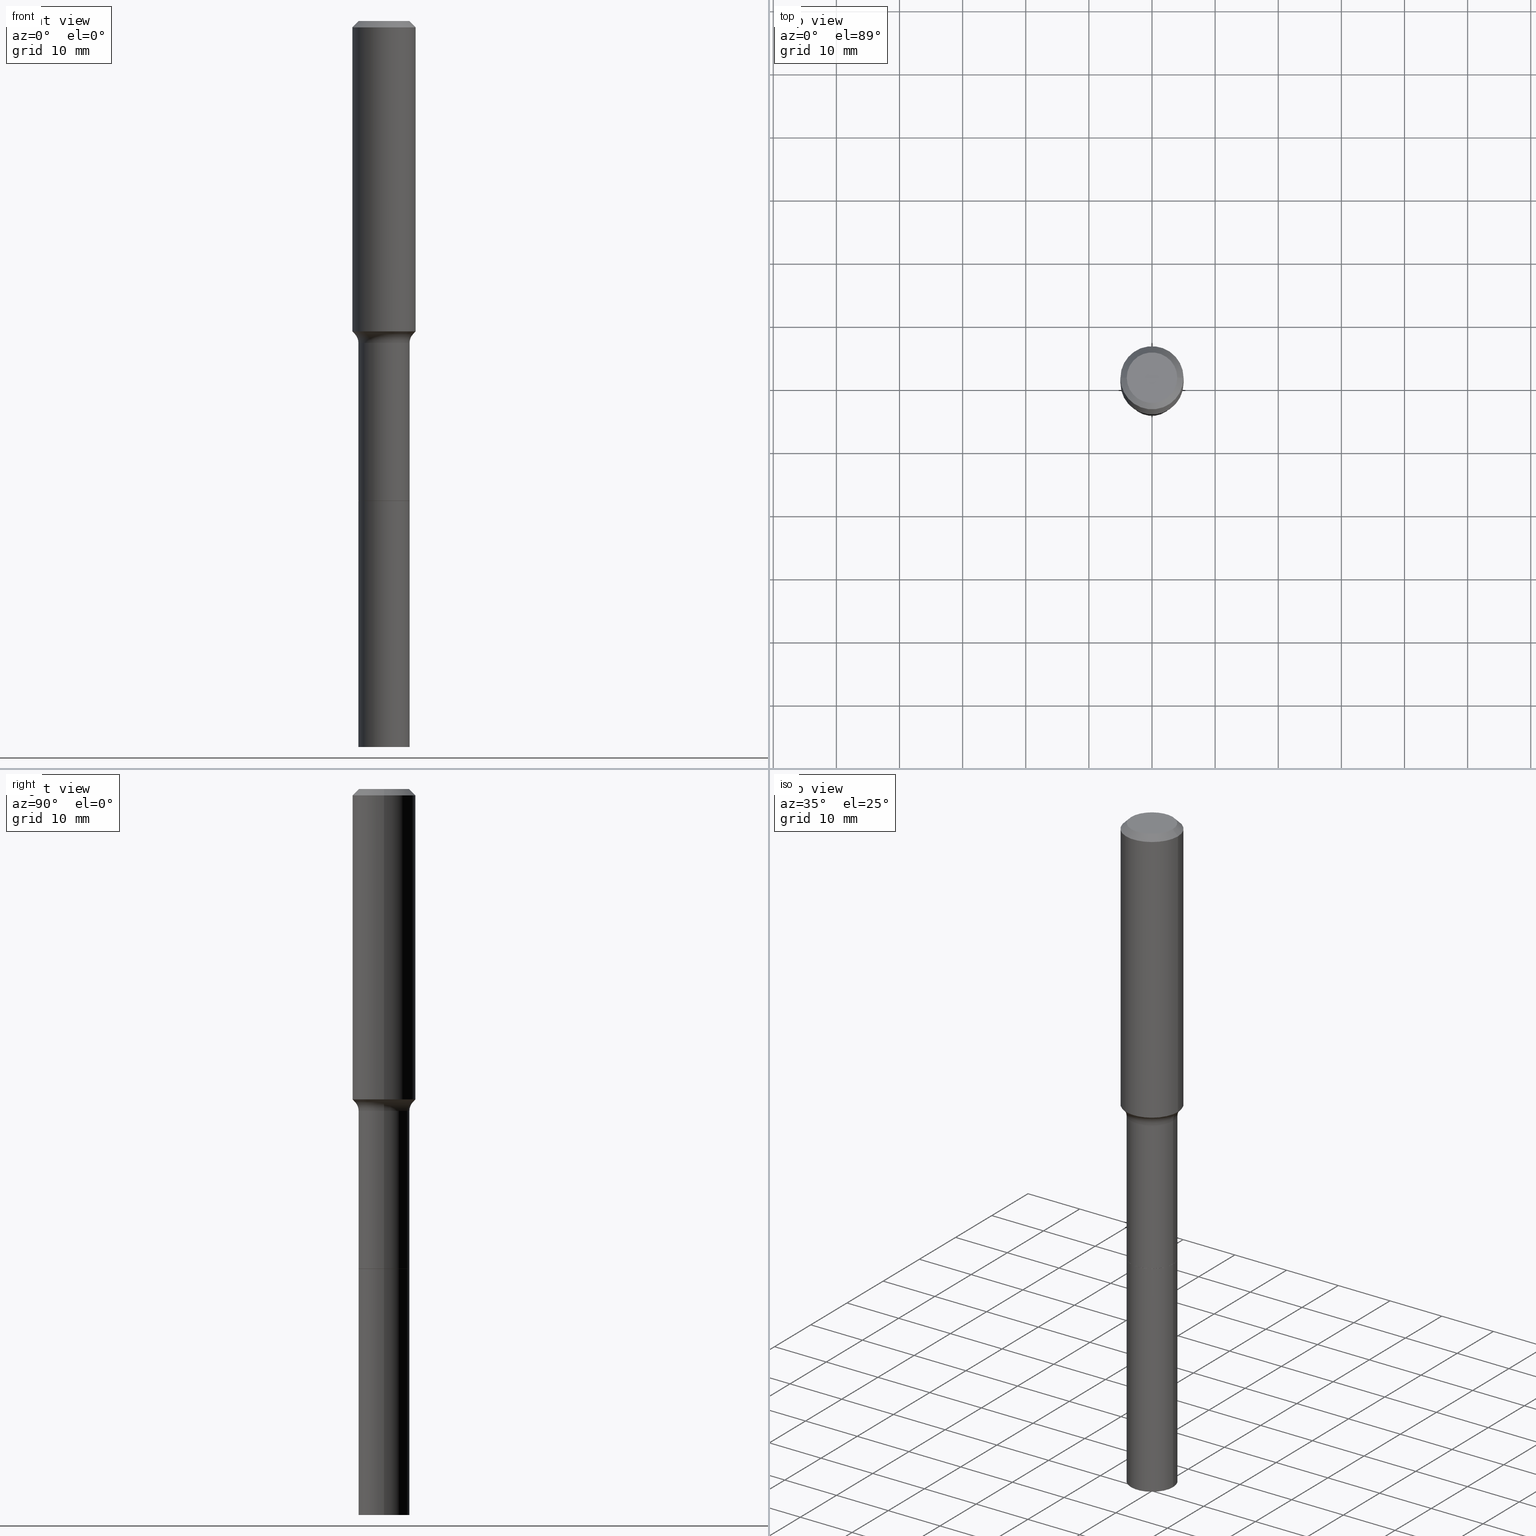
[diagram: canonical four-view strip — front | top / right | iso, engineering-drawing reading convention]
A machine part, canonical four-view strip (front | top / right | iso — engineering-drawing reading convention). The complete STEP part file that produces these views, byte-faithful:
ISO-10303-21;
HEADER;
FILE_DESCRIPTION (( 'STEP AP203' ),
    '1' );
FILE_NAME ('67869.STEP',
    '2025-04-01T15:31:45',
    ( '' ),
    ( '' ),
    'SwSTEP 2.0',
    'SolidWorks 2024',
    '' );
FILE_SCHEMA (( 'CONFIG_CONTROL_DESIGN' ));
ENDSEC;

DATA;
#1 = ORIENTED_EDGE ( 'NONE', *, *, #320, .F. ) ;
#2 = CARTESIAN_POINT ( 'NONE',  ( 1.107210456688382298E-28, -1.580803090974622389E-14, -4.527599999999999625 ) ) ;
#3 = EDGE_LOOP ( 'NONE', ( #193, #36, #82, #361 ) ) ;
#4 = CC_DESIGN_PERSON_AND_ORGANIZATION_ASSIGNMENT ( #226, #294, ( #347 ) ) ;
#5 = CARTESIAN_POINT ( 'NONE',  ( -0.1809417038704662917, -5.533335039266958305E-15, -1.953040131194999418 ) ) ;
#6 = ORIENTED_EDGE ( 'NONE', *, *, #59, .F. ) ;
#7 = AXIS2_PLACEMENT_3D ( 'NONE', #63, #138, #103 ) ;
#8 = DIRECTION ( 'NONE',  ( 1.000000000000000000, -6.982962677686263555E-15, 0.000000000000000000 ) ) ;
#9 = CARTESIAN_POINT ( 'NONE',  ( 4.776098718065098064E-29, -6.819003172079109170E-15, -1.953040131194999418 ) ) ;
#10 = CARTESIAN_POINT ( 'NONE',  ( 0.1589500000000000079, -1.155854897224022715E-14, -2.992599999999999039 ) ) ;
#11 = CC_DESIGN_DATE_AND_TIME_ASSIGNMENT ( #98, #69, ( #514 ) ) ;
#12 = CARTESIAN_POINT ( 'NONE',  ( 4.909523175297278955E-29, -7.009497935861498019E-15, -2.007599999999999607 ) ) ;
#13 = DIRECTION ( 'NONE',  ( 1.000000000000000000, -6.982962677686263555E-15, 0.000000000000000000 ) ) ;
#14 = CIRCLE ( 'NONE', #293, 0.1594500000000000639 ) ;
#15 = AXIS2_PLACEMENT_3D ( 'NONE', #2, #119, #79 ) ;
#16 = EDGE_CURVE ( 'NONE', #395, #198, #453, .T. ) ;
#17 = CARTESIAN_POINT ( 'NONE',  ( 4.776098718065098064E-29, -6.819003172079109170E-15, -1.953040131194999418 ) ) ;
#18 = CARTESIAN_POINT ( 'NONE',  ( -0.1594500000000000361, -1.199535859001462902E-14, -4.527599999999999625 ) ) ;
#19 = CARTESIAN_POINT ( 'NONE',  ( 0.1809417038704662917, -8.082512337043536324E-15, -1.953040131194999418 ) ) ;
#20 = CC_DESIGN_APPROVAL ( #152, ( #469 ) ) ;
#21 = PERSON_AND_ORGANIZATION_ROLE ( 'classification_officer' ) ;
#22 = DIRECTION ( 'NONE',  ( -1.000000000000000000, 6.982962677686265922E-15, -4.876176775795935793E-29 ) ) ;
#23 = DIRECTION ( 'NONE',  ( 2.438088387897960049E-29, -3.491481338843145188E-15, -1.000000000000000000 ) ) ;
#24 = ORIENTED_EDGE ( 'NONE', *, *, #441, .T. ) ;
#25 = APPROVAL_STATUS ( 'not_yet_approved' ) ;
#26 = FACE_OUTER_BOUND ( 'NONE', #3, .T. ) ;
#27 = CC_DESIGN_SECURITY_CLASSIFICATION ( #469, ( #347 ) ) ;
#28 = EDGE_CURVE ( 'NONE', #369, #68, #243, .T. ) ;
#29 = SECURITY_CLASSIFICATION_LEVEL ( 'unclassified' ) ;
#30 = DIRECTION ( 'NONE',  ( 1.000000000000000000, -6.982962677686265133E-15, 0.000000000000000000 ) ) ;
#31 = ORIENTED_EDGE ( 'NONE', *, *, #344, .T. ) ;
#32 = DIRECTION ( 'NONE',  ( 1.000000000000000000, -6.982962677686265133E-15, 0.000000000000000000 ) ) ;
#33 = VERTEX_POINT ( 'NONE', #414 ) ;
#34 = CARTESIAN_POINT ( 'NONE',  ( 0.1809417038704661806, -8.082512337043534746E-15, -1.953040131194999418 ) ) ;
#35 = AXIS2_PLACEMENT_3D ( 'NONE', #263, #297, #224 ) ;
#36 = ORIENTED_EDGE ( 'NONE', *, *, #96, .T. ) ;
#37 = AXIS2_PLACEMENT_3D ( 'NONE', #360, #206, #321 ) ;
#38 = CARTESIAN_POINT ( 'NONE',  ( 0.1968500000000002470, -8.134036243287336255E-15, -1.935980572195880711 ) ) ;
#39 = EDGE_CURVE ( 'NONE', #58, #49, #92, .T. ) ;
#40 = ORIENTED_EDGE ( 'NONE', *, *, #182, .F. ) ;
#41 = DIRECTION ( 'NONE',  ( 1.000000000000000000, -6.982962677686263555E-15, 0.000000000000000000 ) ) ;
#42 = ORIENTED_EDGE ( 'NONE', *, *, #433, .F. ) ;
#43 = DIRECTION ( 'NONE',  ( 0.7071067811864509833, -2.468850131081245741E-15, 0.7071067811866440511 ) ) ;
#44 = ORIENTED_EDGE ( 'NONE', *, *, #433, .T. ) ;
#45 = AXIS2_PLACEMENT_3D ( 'NONE', #161, #117, #194 ) ;
#46 = AXIS2_PLACEMENT_3D ( 'NONE', #127, #72, #438 ) ;
#47 = FACE_OUTER_BOUND ( 'NONE', #80, .T. ) ;
#48 = DIRECTION ( 'NONE',  ( 1.000000000000000000, -6.982962677686267499E-15, 0.000000000000000000 ) ) ;
#49 = VERTEX_POINT ( 'NONE', #367 ) ;
#50 =( LENGTH_UNIT ( ) NAMED_UNIT ( * ) SI_UNIT ( $, .METRE. ) );
#51 = VERTEX_POINT ( 'NONE', #19 ) ;
#52 = VECTOR ( 'NONE', #168, 39.37007874015748143 ) ;
#53 = CC_DESIGN_APPROVAL ( #261, ( #514 ) ) ;
#54 = APPLICATION_PROTOCOL_DEFINITION ( 'international standard', 'config_control_design', 1994, #323 ) ;
#55 = EDGE_CURVE ( 'NONE', #355, #434, #488, .T. ) ;
#56 =( CONVERSION_BASED_UNIT ( 'INCH', #172 ) LENGTH_UNIT ( ) NAMED_UNIT ( #165 ) );
#57 = PERSON ( 'UNSPECIFIED', 'UNSPECIFIED', 'UNSPECIFIED', ('UNSPECIFIED'), ('UNSPECIFIED'), ('UNSPECIFIED') ) ;
#58 = VERTEX_POINT ( 'NONE', #319 ) ;
#59 = EDGE_CURVE ( 'NONE', #311, #51, #245, .T. ) ;
#60 = FACE_OUTER_BOUND ( 'NONE', #230, .T. ) ;
#61 = CIRCLE ( 'NONE', #86, 0.1574800000000000089 ) ;
#62 = EDGE_LOOP ( 'NONE', ( #183, #314, #118, #90 ) ) ;
#63 = CARTESIAN_POINT ( 'NONE',  ( 0.000000000000000000, 0.000000000000000000, 0.000000000000000000 ) ) ;
#64 = CARTESIAN_POINT ( 'NONE',  ( -0.1809417038704661806, -5.533335039266959883E-15, -1.953040131194999418 ) ) ;
#65 = ORIENTED_EDGE ( 'NONE', *, *, #266, .F. ) ;
#66 = CYLINDRICAL_SURFACE ( 'NONE', #373, 0.1594500000000000361 ) ;
#67 = LOCAL_TIME ( 11, 31, 45.00000000000000000, #464 ) ;
#68 = VERTEX_POINT ( 'NONE', #322 ) ;
#69 = DATE_TIME_ROLE ( 'creation_date' ) ;
#70 = DIRECTION ( 'NONE',  ( -2.445468806185136597E-29, 3.491481338843145583E-15, 1.000000000000000000 ) ) ;
#71 = ORIENTED_EDGE ( 'NONE', *, *, #208, .T. ) ;
#72 = DIRECTION ( 'NONE',  ( 2.438088387897960049E-29, -3.491481338843145188E-15, -1.000000000000000000 ) ) ;
#73 = VERTEX_POINT ( 'NONE', #408 ) ;
#74 = EDGE_CURVE ( 'NONE', #77, #349, #214, .T. ) ;
#75 = DIRECTION ( 'NONE',  ( -2.445468806185136597E-29, 3.491481338843145583E-15, 1.000000000000000000 ) ) ;
#76 = TOROIDAL_SURFACE ( 'NONE', #504, 0.2394499999999999684, 0.08000000000000009881 ) ;
#77 = VERTEX_POINT ( 'NONE', #295 ) ;
#78 = CIRCLE ( 'NONE', #416, 0.1594499999999999251 ) ;
#79 = DIRECTION ( 'NONE',  ( 1.000000000000000000, -6.982962677686265133E-15, 0.000000000000000000 ) ) ;
#80 = EDGE_LOOP ( 'NONE', ( #271, #316, #157, #483 ) ) ;
#81 = DIRECTION ( 'NONE',  ( -1.000000000000000000, 6.982962677686265922E-15, 0.000000000000000000 ) ) ;
#82 = ORIENTED_EDGE ( 'NONE', *, *, #478, .T. ) ;
#83 = CARTESIAN_POINT ( 'NONE',  ( 7.318309949389636553E-29, -1.044860705462199337E-14, -2.992599999999999039 ) ) ;
#84 = DIRECTION ( 'NONE',  ( -2.445468806185136597E-29, 3.491481338843145583E-15, 1.000000000000000000 ) ) ;
#85 = VECTOR ( 'NONE', #220, 39.37007874015748143 ) ;
#86 = AXIS2_PLACEMENT_3D ( 'NONE', #202, #156, #315 ) ;
#87 = CARTESIAN_POINT ( 'NONE',  ( 7.318309949389636553E-29, -1.044860705462199337E-14, -2.992599999999999039 ) ) ;
#88 = DIRECTION ( 'NONE',  ( 1.000000000000000000, -6.982962677686265133E-15, 4.883557194083112340E-29 ) ) ;
#89 = DIRECTION ( 'NONE',  ( 1.000000000000000000, -6.982962677686265922E-15, 4.876176775795935793E-29 ) ) ;
#90 = ORIENTED_EDGE ( 'NONE', *, *, #96, .F. ) ;
#91 = CC_DESIGN_PERSON_AND_ORGANIZATION_ASSIGNMENT ( #254, #415, ( #484 ) ) ;
#92 = CIRCLE ( 'NONE', #298, 0.1574800000000000089 ) ;
#93 = AXIS2_PLACEMENT_3D ( 'NONE', #485, #518, #406 ) ;
#94 = DIRECTION ( 'NONE',  ( 0.000000000000000000, 0.000000000000000000, 1.000000000000000000 ) ) ;
#95 = PERSON_AND_ORGANIZATION ( #57, #421 ) ;
#96 = EDGE_CURVE ( 'NONE', #179, #116, #14, .T. ) ;
#97 = ADVANCED_FACE ( 'NONE', ( #410 ), #76, .F. ) ;
#98 = DATE_AND_TIME ( #105, #67 ) ;
#99 = ORIENTED_EDGE ( 'NONE', *, *, #55, .T. ) ;
#100 = ORIENTED_EDGE ( 'NONE', *, *, #296, .T. ) ;
#101 = SHAPE_DEFINITION_REPRESENTATION ( #249, #481 ) ;
#102 = AXIS2_PLACEMENT_3D ( 'NONE', #310, #23, #22 ) ;
#103 = DIRECTION ( 'NONE',  ( 1.000000000000000000, -6.982962677686267499E-15, 4.876176775795936914E-29 ) ) ;
#104 = CIRCLE ( 'NONE', #455, 0.1968500000000002470 ) ;
#105 = CALENDAR_DATE ( 2025, 1, 4 ) ;
#106 = CARTESIAN_POINT ( 'NONE',  ( -0.1594499999999999806, 1.132960392169479609E-15, -7.843242001411446535E-30 ) ) ;
#107 = PERSON_AND_ORGANIZATION ( #57, #421 ) ;
#108 = CARTESIAN_POINT ( 'NONE',  ( 4.776098718065098064E-29, -6.819003172079109170E-15, -1.953040131194999418 ) ) ;
#109 = EDGE_CURVE ( 'NONE', #466, #458, #440, .T. ) ;
#110 = ORIENTED_EDGE ( 'NONE', *, *, #296, .F. ) ;
#111 = DIRECTION ( 'NONE',  ( 1.000000000000000000, -6.982962677686266711E-15, 4.876176775795935793E-29 ) ) ;
#112 = AXIS2_PLACEMENT_3D ( 'NONE', #352, #383, #341 ) ;
#113 = AXIS2_PLACEMENT_3D ( 'NONE', #497, #409, #290 ) ;
#114 = ORIENTED_EDGE ( 'NONE', *, *, #487, .T. ) ;
#115 = LINE ( 'NONE', #106, #85 ) ;
#116 = VERTEX_POINT ( 'NONE', #200 ) ;
#117 = DIRECTION ( 'NONE',  ( -2.445468806185136597E-29, 3.491481338843145583E-15, 1.000000000000000000 ) ) ;
#118 = ORIENTED_EDGE ( 'NONE', *, *, #313, .T. ) ;
#119 = DIRECTION ( 'NONE',  ( -2.445468806185136597E-29, 3.491481338843145583E-15, 1.000000000000000000 ) ) ;
#120 = ORIENTED_EDGE ( 'NONE', *, *, #320, .T. ) ;
#121 = ADVANCED_FACE ( 'NONE', ( #326 ), #175, .F. ) ;
#122 = CYLINDRICAL_SURFACE ( 'NONE', #37, 0.1594499999999999806 ) ;
#123 = CARTESIAN_POINT ( 'NONE',  ( 0.1968500000000001082, -1.374596203102542397E-15, 9.598753983154305062E-30 ) ) ;
#124 = FACE_OUTER_BOUND ( 'NONE', #275, .T. ) ;
#125 = EDGE_CURVE ( 'NONE', #58, #68, #128, .T. ) ;
#126 = CARTESIAN_POINT ( 'NONE',  ( 7.318309949389638795E-29, -1.044860705462199652E-14, -2.992599999999999483 ) ) ;
#127 = CARTESIAN_POINT ( 'NONE',  ( -4.713871149261283817E-47, 6.730158695841841775E-33, 1.927594061857935365E-18 ) ) ;
#128 = LINE ( 'NONE', #252, #52 ) ;
#129 = AXIS2_PLACEMENT_3D ( 'NONE', #378, #337, #89 ) ;
#130 = DIRECTION ( 'NONE',  ( -2.445468806185136597E-29, 3.491481338843145583E-15, 1.000000000000000000 ) ) ;
#131 = DIRECTION ( 'NONE',  ( -2.445468806185136597E-29, 3.491481338843145583E-15, 1.000000000000000000 ) ) ;
#132 = FACE_OUTER_BOUND ( 'NONE', #205, .T. ) ;
#133 = CIRCLE ( 'NONE', #476, 0.08000000000000009881 ) ;
#134 = VECTOR ( 'NONE', #166, 39.37007874015748143 ) ;
#135 = DATE_AND_TIME ( #495, #279 ) ;
#136 = APPLICATION_CONTEXT ( 'configuration controlled 3d designs of mechanical parts and assemblies' ) ;
#137 = ORIENTED_EDGE ( 'NONE', *, *, #229, .F. ) ;
#138 = DIRECTION ( 'NONE',  ( -2.445468806185136597E-29, 3.491481338843145583E-15, 1.000000000000000000 ) ) ;
#139 = AXIS2_PLACEMENT_3D ( 'NONE', #448, #84, #13 ) ;
#140 = DIRECTION ( 'NONE',  ( -2.445468806185136597E-29, 3.491481338843145583E-15, 1.000000000000000000 ) ) ;
#141 = ORIENTED_EDGE ( 'NONE', *, *, #74, .T. ) ;
#142 = APPROVAL_ROLE ( '' ) ;
#143 = DIRECTION ( 'NONE',  ( 1.000000000000000000, -6.982962677686265133E-15, 0.000000000000000000 ) ) ;
#144 = ORIENTED_EDGE ( 'NONE', *, *, #109, .F. ) ;
#145 = PERSON_AND_ORGANIZATION ( #57, #421 ) ;
#146 = DIRECTION ( 'NONE',  ( -2.445468806185136597E-29, 3.491481338843145583E-15, 1.000000000000000000 ) ) ;
#147 = MANIFOLD_SOLID_BREP ( 'Body-Move/Copy2[1]', #449 ) ;
#148 = ORIENTED_EDGE ( 'NONE', *, *, #292, .T. ) ;
#149 = FACE_OUTER_BOUND ( 'NONE', #187, .T. ) ;
#150 = ADVANCED_FACE ( 'NONE', ( #330 ), #491, .F. ) ;
#151 = VECTOR ( 'NONE', #284, 39.37007874015748143 ) ;
#152 = APPROVAL ( #502, 'UNSPECIFIED' ) ;
#153 = ORIENTED_EDGE ( 'NONE', *, *, #344, .F. ) ;
#154 = DIRECTION ( 'NONE',  ( -2.445468806185136597E-29, 3.491481338843145583E-15, 1.000000000000000000 ) ) ;
#155 = ORIENTED_EDGE ( 'NONE', *, *, #229, .T. ) ;
#156 = DIRECTION ( 'NONE',  ( -2.445468806185136597E-29, 3.491481338843145583E-15, 1.000000000000000000 ) ) ;
#157 = ORIENTED_EDGE ( 'NONE', *, *, #125, .T. ) ;
#158 = PLANE ( 'NONE',  #46 ) ;
#159 = VECTOR ( 'NONE', #446, 39.37007874015748143 ) ;
#160 = DIRECTION ( 'NONE',  ( -2.445468806185136597E-29, 3.491481338843145583E-15, 1.000000000000000000 ) ) ;
#161 = CARTESIAN_POINT ( 'NONE',  ( 7.318309949389636553E-29, -1.044860705462199337E-14, -2.992599999999999039 ) ) ;
#162 = DIRECTION ( 'NONE',  ( 1.000000000000000000, -6.982962677686265922E-15, 4.876223630392693006E-29 ) ) ;
#163 = FACE_OUTER_BOUND ( 'NONE', #218, .T. ) ;
#164 = DIRECTION ( 'NONE',  ( 1.000000000000000000, -6.982962677686265133E-15, 0.000000000000000000 ) ) ;
#165 = DIMENSIONAL_EXPONENTS ( 1.000000000000000000, 0.000000000000000000, 0.000000000000000000, 0.000000000000000000, 0.000000000000000000, 0.000000000000000000, 0.000000000000000000 ) ;
#166 = DIRECTION ( 'NONE',  ( -2.445468806185136877E-29, 3.491481338843145188E-15, 1.000000000000000000 ) ) ;
#167 = ADVANCED_FACE ( 'NONE', ( #26 ), #387, .T. ) ;
#168 = DIRECTION ( 'NONE',  ( -0.7071067811865452413, 2.468850131082233000E-15, -0.7071067811865497932 ) ) ;
#169 = AXIS2_PLACEMENT_3D ( 'NONE', #186, #460, #265 ) ;
#170 = AXIS2_PLACEMENT_3D ( 'NONE', #333, #94, #174 ) ;
#171 = DIRECTION ( 'NONE',  ( -2.445468806185136877E-29, 3.491481338843145188E-15, 1.000000000000000000 ) ) ;
#172 = LENGTH_MEASURE_WITH_UNIT ( LENGTH_MEASURE( 0.02539999999999999897 ), #50 );
#173 = EDGE_CURVE ( 'NONE', #349, #77, #335, .T. ) ;
#174 = DIRECTION ( 'NONE',  ( 1.000000000000000000, 0.000000000000000000, 0.000000000000000000 ) ) ;
#175 = TOROIDAL_SURFACE ( 'NONE', #328, 0.2394499999999999684, 0.08000000000000009881 ) ;
#176 = CC_DESIGN_APPROVAL ( #462, ( #347 ) ) ;
#177 = CARTESIAN_POINT ( 'NONE',  ( 0.1594500000000000361, -1.692146430870329752E-14, -4.527599999999999625 ) ) ;
#178 = CC_DESIGN_PERSON_AND_ORGANIZATION_ASSIGNMENT ( #223, #21, ( #469 ) ) ;
#179 = VERTEX_POINT ( 'NONE', #303 ) ;
#180 = CARTESIAN_POINT ( 'NONE',  ( 7.318309949389638795E-29, -1.044860705462199652E-14, -2.992599999999999483 ) ) ;
#181 = DIRECTION ( 'NONE',  ( -2.445468806185136877E-29, 3.491481338843145188E-15, 1.000000000000000000 ) ) ;
#182 = EDGE_CURVE ( 'NONE', #51, #355, #308, .T. ) ;
#183 = ORIENTED_EDGE ( 'NONE', *, *, #396, .F. ) ;
#184 = VECTOR ( 'NONE', #465, 39.37007874015748143 ) ;
#185 = APPROVAL_PERSON_ORGANIZATION ( #145, #462, #142 ) ;
#186 = CARTESIAN_POINT ( 'NONE',  ( 4.776098718065098064E-29, -6.819003172079109170E-15, -1.953040131194999418 ) ) ;
#187 = EDGE_LOOP ( 'NONE', ( #393, #144 ) ) ;
#188 = DATE_TIME_ROLE ( 'classification_date' ) ;
#189 = DIRECTION ( 'NONE',  ( -1.000000000000000000, 6.982962677686265922E-15, -4.876176775795935793E-29 ) ) ;
#190 = ORIENTED_EDGE ( 'NONE', *, *, #28, .F. ) ;
#191 = EDGE_CURVE ( 'NONE', #311, #369, #424, .T. ) ;
#192 = CARTESIAN_POINT ( 'NONE',  ( -0.2394499999999999684, -5.308103355083938546E-15, -2.007599999999999607 ) ) ;
#193 = ORIENTED_EDGE ( 'NONE', *, *, #208, .F. ) ;
#194 = DIRECTION ( 'NONE',  ( 1.000000000000000000, -6.982962677686269866E-15, 0.000000000000000000 ) ) ;
#195 = ORIENTED_EDGE ( 'NONE', *, *, #191, .T. ) ;
#196 = DIRECTION ( 'NONE',  ( -0.7071067811864509833, 7.493145998870005484E-15, 0.7071067811866440511 ) ) ;
#197 = ADVANCED_FACE ( 'NONE', ( #149 ), #348, .T. ) ;
#198 = VERTEX_POINT ( 'NONE', #392 ) ;
#199 = CARTESIAN_POINT ( 'NONE',  ( 4.734380098685478056E-29, -6.759440040184793069E-15, -1.935980572195880711 ) ) ;
#200 = CARTESIAN_POINT ( 'NONE',  ( 0.1594500000000000639, -1.156029471290964628E-14, -2.992099999999998872 ) ) ;
#201 = ADVANCED_FACE ( 'NONE', ( #500 ), #277, .T. ) ;
#202 = CARTESIAN_POINT ( 'NONE',  ( -9.427742298522567634E-47, 1.346031739168368355E-32, 3.855188123715870730E-18 ) ) ;
#203 = AXIS2_PLACEMENT_3D ( 'NONE', #231, #394, #32 ) ;
#204 = AXIS2_PLACEMENT_3D ( 'NONE', #436, #312, #81 ) ;
#205 = EDGE_LOOP ( 'NONE', ( #213, #422, #100, #153 ) ) ;
#206 = DIRECTION ( 'NONE',  ( -2.445468806185136597E-29, 3.491481338843145583E-15, 1.000000000000000000 ) ) ;
#207 = DIRECTION ( 'NONE',  ( -2.445468806185136597E-29, 3.491481338843145583E-15, 1.000000000000000000 ) ) ;
#208 = EDGE_CURVE ( 'NONE', #179, #434, #115, .T. ) ;
#209 = CARTESIAN_POINT ( 'NONE',  ( 0.1594500000000000361, -1.156204045357907173E-14, -2.992599999999999483 ) ) ;
#210 = ADVANCED_FACE ( 'NONE', ( #228 ), #380, .T. ) ;
#211 = DIRECTION ( 'NONE',  ( 1.000000000000000000, -6.982962677686263555E-15, 0.000000000000000000 ) ) ;
#212 = AXIS2_PLACEMENT_3D ( 'NONE', #9, #291, #338 ) ;
#213 = ORIENTED_EDGE ( 'NONE', *, *, #191, .F. ) ;
#214 = CIRCLE ( 'NONE', #260, 0.1594500000000000361 ) ;
#215 = CIRCLE ( 'NONE', #246, 0.1968500000000002470 ) ;
#216 = APPROVAL_STATUS ( 'not_yet_approved' ) ;
#217 = PERSON_AND_ORGANIZATION_ROLE ( 'creator' ) ;
#218 = EDGE_LOOP ( 'NONE', ( #508, #71, #425, #379 ) ) ;
#219 = AXIS2_PLACEMENT_3D ( 'NONE', #108, #272, #343 ) ;
#220 = DIRECTION ( 'NONE',  ( -2.445468806185136877E-29, 3.491481338843145188E-15, 1.000000000000000000 ) ) ;
#221 = DIRECTION ( 'NONE',  ( -0.6819983600625038056, 7.399397606724307086E-15, 0.7313537016191655749 ) ) ;
#222 = EDGE_CURVE ( 'NONE', #49, #198, #385, .T. ) ;
#223 = PERSON_AND_ORGANIZATION ( #57, #421 ) ;
#224 = DIRECTION ( 'NONE',  ( 1.000000000000000000, -6.982962677686269866E-15, 0.000000000000000000 ) ) ;
#225 = EDGE_LOOP ( 'NONE', ( #6, #148, #24, #40 ) ) ;
#226 = PERSON_AND_ORGANIZATION ( #57, #421 ) ;
#227 = CONICAL_SURFACE ( 'NONE', #407, 0.1589500000000000079, 0.7853981633973118326 ) ;
#228 = FACE_OUTER_BOUND ( 'NONE', #353, .T. ) ;
#229 = EDGE_CURVE ( 'NONE', #466, #77, #262, .T. ) ;
#230 = EDGE_LOOP ( 'NONE', ( #506, #155, #359, #516 ) ) ;
#231 = CARTESIAN_POINT ( 'NONE',  ( 7.318309949389638795E-29, -1.044860705462199652E-14, -2.992599999999999483 ) ) ;
#232 = EDGE_LOOP ( 'NONE', ( #283, #141 ) ) ;
#233 = PRODUCT_RELATED_PRODUCT_CATEGORY ( 'detail', '', ( #484 ) ) ;
#234 = DIRECTION ( 'NONE',  ( -2.445468806185136597E-29, 3.491481338843145583E-15, 1.000000000000000000 ) ) ;
#235 = ORIENTED_EDGE ( 'NONE', *, *, #28, .T. ) ;
#236 = DIRECTION ( 'NONE',  ( 1.000000000000000000, -6.982962677686266711E-15, 4.876176775795935793E-29 ) ) ;
#237 = CIRCLE ( 'NONE', #515, 0.1968500000000000250 ) ;
#238 = LOCAL_TIME ( 11, 31, 45.00000000000000000, #302 ) ;
#239 = EDGE_LOOP ( 'NONE', ( #1, #444 ) ) ;
#240 = CARTESIAN_POINT ( 'NONE',  ( 7.317087214986543751E-29, -1.044686131395257108E-14, -2.992099999999998872 ) ) ;
#241 = ORIENTED_EDGE ( 'NONE', *, *, #125, .F. ) ;
#242 = DIRECTION ( 'NONE',  ( -2.445468806185136597E-29, 3.491481338843145583E-15, 1.000000000000000000 ) ) ;
#243 = LINE ( 'NONE', #405, #255 ) ;
#244 = LINE ( 'NONE', #209, #517 ) ;
#245 = CIRCLE ( 'NONE', #212, 0.1809417038704661806 ) ;
#246 = AXIS2_PLACEMENT_3D ( 'NONE', #447, #234, #479 ) ;
#247 = EDGE_LOOP ( 'NONE', ( #512, #429, #281, #99 ) ) ;
#248 = EDGE_CURVE ( 'NONE', #51, #311, #345, .T. ) ;
#249 = PRODUCT_DEFINITION_SHAPE ( 'NONE', 'NONE',  #514 ) ;
#250 = ADVANCED_FACE ( 'NONE', ( #60 ), #66, .T. ) ;
#251 = CARTESIAN_POINT ( 'NONE',  ( 0.1594499999999999806, -1.113433398957075208E-15, 7.775063869006620076E-30 ) ) ;
#252 = CARTESIAN_POINT ( 'NONE',  ( -0.1968500000000000250, 1.237136582792286225E-15, -0.03937000000000026589 ) ) ;
#253 = DIRECTION ( 'NONE',  ( -2.445468806185136877E-29, 3.491481338843145188E-15, 1.000000000000000000 ) ) ;
#254 = PERSON_AND_ORGANIZATION ( #57, #421 ) ;
#255 = VECTOR ( 'NONE', #253, 39.37007874015748143 ) ;
#256 = LOCAL_TIME ( 11, 31, 45.00000000000000000, #510 ) ;
#257 = MECHANICAL_CONTEXT ( 'NONE', #136, 'mechanical' ) ;
#258 = CALENDAR_DATE ( 2025, 1, 4 ) ;
#259 = DIRECTION ( 'NONE',  ( -2.445468806185136597E-29, 3.491481338843145583E-15, 1.000000000000000000 ) ) ;
#260 = AXIS2_PLACEMENT_3D ( 'NONE', #126, #286, #498 ) ;
#261 = APPROVAL ( #216, 'UNSPECIFIED' ) ;
#262 = LINE ( 'NONE', #467, #317 ) ;
#263 = CARTESIAN_POINT ( 'NONE',  ( 7.318309949389636553E-29, -1.044860705462199337E-14, -2.992599999999999039 ) ) ;
#264 = DATE_AND_TIME ( #305, #256 ) ;
#265 = DIRECTION ( 'NONE',  ( 1.000000000000000000, -6.982962677686267499E-15, 0.000000000000000000 ) ) ;
#266 = EDGE_CURVE ( 'NONE', #68, #198, #237, .T. ) ;
#267 = ORIENTED_EDGE ( 'NONE', *, *, #396, .T. ) ;
#268 = CIRCLE ( 'NONE', #45, 0.1589500000000000079 ) ;
#269 = VECTOR ( 'NONE', #196, 39.37007874015748143 ) ;
#270 = FACE_OUTER_BOUND ( 'NONE', #437, .T. ) ;
#271 = ORIENTED_EDGE ( 'NONE', *, *, #222, .F. ) ;
#272 = DIRECTION ( 'NONE',  ( -2.445468806185136597E-29, 3.491481338843145583E-15, 1.000000000000000000 ) ) ;
#273 = ORIENTED_EDGE ( 'NONE', *, *, #16, .T. ) ;
#274 = FACE_OUTER_BOUND ( 'NONE', #346, .T. ) ;
#275 = EDGE_LOOP ( 'NONE', ( #386, #301, #114, #241 ) ) ;
#276 = ADVANCED_FACE ( 'NONE', ( #463 ), #511, .T. ) ;
#277 = CONICAL_SURFACE ( 'NONE', #35, 0.1589500000000000079, 0.7853981633973118326 ) ;
#278 = CARTESIAN_POINT ( 'NONE',  ( 0.1594499999999999251, -8.122931334818572439E-15, -2.007599999999999607 ) ) ;
#279 = LOCAL_TIME ( 11, 31, 45.00000000000000000, #334 ) ;
#280 = AXIS2_PLACEMENT_3D ( 'NONE', #17, #130, #48 ) ;
#281 = ORIENTED_EDGE ( 'NONE', *, *, #182, .T. ) ;
#282 = CARTESIAN_POINT ( 'NONE',  ( 4.909523175297278955E-29, -7.009497935861498019E-15, -2.007599999999999607 ) ) ;
#283 = ORIENTED_EDGE ( 'NONE', *, *, #173, .T. ) ;
#284 = DIRECTION ( 'NONE',  ( 0.6819983600625038056, -2.208861293262529051E-15, 0.7313537016191655749 ) ) ;
#285 = ADVANCED_FACE ( 'NONE', ( #270 ), #432, .T. ) ;
#286 = DIRECTION ( 'NONE',  ( -2.445468806185136597E-29, 3.491481338843145583E-15, 1.000000000000000000 ) ) ;
#287 = AXIS2_PLACEMENT_3D ( 'NONE', #354, #146, #111 ) ;
#288 = CONICAL_SURFACE ( 'NONE', #204, 0.1968500000000000250, 0.7853981633974450594 ) ;
#289 = CARTESIAN_POINT ( 'NONE',  ( 4.909523175297278955E-29, -7.009497935861498019E-15, -2.007599999999999607 ) ) ;
#290 = DIRECTION ( 'NONE',  ( 1.000000000000000000, -6.982962677686265922E-15, 0.000000000000000000 ) ) ;
#291 = DIRECTION ( 'NONE',  ( -2.445468806185136597E-29, 3.491481338843145583E-15, 1.000000000000000000 ) ) ;
#292 = EDGE_CURVE ( 'NONE', #311, #434, #133, .T. ) ;
#293 = AXIS2_PLACEMENT_3D ( 'NONE', #457, #259, #211 ) ;
#294 = PERSON_AND_ORGANIZATION_ROLE ( 'design_supplier' ) ;
#295 = CARTESIAN_POINT ( 'NONE',  ( -0.1594500000000000361, -1.199535859001462902E-14, -2.992599999999999483 ) ) ;
#296 = EDGE_CURVE ( 'NONE', #51, #395, #482, .T. ) ;
#297 = DIRECTION ( 'NONE',  ( -2.445468806185136597E-29, 3.491481338843145583E-15, 1.000000000000000000 ) ) ;
#298 = AXIS2_PLACEMENT_3D ( 'NONE', #363, #160, #162 ) ;
#299 = CIRCLE ( 'NONE', #15, 0.1594500000000000361 ) ;
#300 = DIRECTION ( 'NONE',  ( 1.000000000000000000, -6.982962677686265922E-15, 0.000000000000000000 ) ) ;
#301 = ORIENTED_EDGE ( 'NONE', *, *, #222, .T. ) ;
#302 = COORDINATED_UNIVERSAL_TIME_OFFSET ( 5, 0, .BEHIND. ) ;
#303 = CARTESIAN_POINT ( 'NONE',  ( -0.1594500000000000639, -7.595219232737553755E-15, -2.992099999999998872 ) ) ;
#304 = ORIENTED_EDGE ( 'NONE', *, *, #39, .T. ) ;
#305 = CALENDAR_DATE ( 2025, 1, 4 ) ;
#306 = DIRECTION ( 'NONE',  ( -2.445468806185136597E-29, 3.491481338843145583E-15, 1.000000000000000000 ) ) ;
#307 = ORIENTED_EDGE ( 'NONE', *, *, #74, .F. ) ;
#308 = CIRCLE ( 'NONE', #112, 0.08000000000000009881 ) ;
#309 = CIRCLE ( 'NONE', #113, 0.1968500000000000250 ) ;
#310 = CARTESIAN_POINT ( 'NONE',  ( 1.107210456688382298E-28, -1.580803090974622389E-14, -4.527599999999999625 ) ) ;
#311 = VERTEX_POINT ( 'NONE', #5 ) ;
#312 = DIRECTION ( 'NONE',  ( 2.445468806185136597E-29, -3.491481338843145583E-15, -1.000000000000000000 ) ) ;
#313 = EDGE_CURVE ( 'NONE', #73, #116, #324, .T. ) ;
#314 = ORIENTED_EDGE ( 'NONE', *, *, #358, .T. ) ;
#315 = DIRECTION ( 'NONE',  ( 1.000000000000000000, -6.982962677686265922E-15, 4.876223630392693006E-29 ) ) ;
#316 = ORIENTED_EDGE ( 'NONE', *, *, #39, .F. ) ;
#317 = VECTOR ( 'NONE', #181, 39.37007874015748143 ) ;
#318 = DIRECTION ( 'NONE',  ( 1.000000000000000000, -6.982962677686265133E-15, 0.000000000000000000 ) ) ;
#319 = CARTESIAN_POINT ( 'NONE',  ( -0.1574800000000000089, 1.168406772637159618E-15, 3.855188123707939751E-18 ) ) ;
#320 = EDGE_CURVE ( 'NONE', #73, #33, #268, .T. ) ;
#321 = DIRECTION ( 'NONE',  ( 1.000000000000000000, -6.982962677686267499E-15, 4.876176775795936914E-29 ) ) ;
#322 = CARTESIAN_POINT ( 'NONE',  ( -0.1968500000000000250, -2.049746454903765749E-15, -0.03937000000000026589 ) ) ;
#323 = APPLICATION_CONTEXT ( 'configuration controlled 3d designs of mechanical parts and assemblies' ) ;
#324 = LINE ( 'NONE', #10, #496 ) ;
#325 = ADVANCED_FACE ( 'NONE', ( #163 ), #122, .T. ) ;
#326 = FACE_OUTER_BOUND ( 'NONE', #247, .T. ) ;
#327 = DIRECTION ( 'NONE',  ( -2.445468806185136597E-29, 3.491481338843145583E-15, 1.000000000000000000 ) ) ;
#328 = AXIS2_PLACEMENT_3D ( 'NONE', #289, #451, #88 ) ;
#329 = AXIS2_PLACEMENT_3D ( 'NONE', #83, #154, #445 ) ;
#330 = FACE_OUTER_BOUND ( 'NONE', #232, .T. ) ;
#331 = APPLICATION_PROTOCOL_DEFINITION ( 'international standard', 'config_control_design', 1994, #136 ) ;
#332 = ADVANCED_FACE ( 'NONE', ( #47 ), #374, .T. ) ;
#333 = CARTESIAN_POINT ( 'NONE',  ( 0.000000000000000000, 0.000000000000000000, 0.000000000000000000 ) ) ;
#334 = COORDINATED_UNIVERSAL_TIME_OFFSET ( 5, 0, .BEHIND. ) ;
#335 = CIRCLE ( 'NONE', #389, 0.1594500000000000361 ) ;
#336 = AXIS2_PLACEMENT_3D ( 'NONE', #472, #75, #236 ) ;
#337 = DIRECTION ( 'NONE',  ( -2.438088387897960049E-29, 3.491481338843145188E-15, 1.000000000000000000 ) ) ;
#338 = DIRECTION ( 'NONE',  ( 1.000000000000000000, -6.982962677686267499E-15, 0.000000000000000000 ) ) ;
#339 = CC_DESIGN_PERSON_AND_ORGANIZATION_ASSIGNMENT ( #342, #431, ( #347 ) ) ;
#340 = APPROVAL_DATE_TIME ( #264, #152 ) ;
#341 = DIRECTION ( 'NONE',  ( 1.000000000000000000, -6.982962677686263555E-15, 0.000000000000000000 ) ) ;
#342 = PERSON_AND_ORGANIZATION ( #57, #421 ) ;
#343 = DIRECTION ( 'NONE',  ( 1.000000000000000000, -6.982962677686267499E-15, 0.000000000000000000 ) ) ;
#344 = EDGE_CURVE ( 'NONE', #369, #395, #215, .T. ) ;
#345 = CIRCLE ( 'NONE', #219, 0.1809417038704661806 ) ;
#346 = EDGE_LOOP ( 'NONE', ( #304, #473 ) ) ;
#347 = PRODUCT_DEFINITION_FORMATION_WITH_SPECIFIED_SOURCE ( 'ANY', '', #484, .NOT_KNOWN. ) ;
#348 = PLANE ( 'NONE',  #102 ) ;
#349 = VERTEX_POINT ( 'NONE', #397 ) ;
#350 = ADVANCED_FACE ( 'NONE', ( #274 ), #158, .F. ) ;
#351 = APPROVAL_ROLE ( '' ) ;
#352 = CARTESIAN_POINT ( 'NONE',  ( 0.2394499999999999684, -8.681568349033474091E-15, -2.007599999999999607 ) ) ;
#353 = EDGE_LOOP ( 'NONE', ( #480, #195, #42, #110 ) ) ;
#354 = CARTESIAN_POINT ( 'NONE',  ( 0.000000000000000000, 0.000000000000000000, 0.000000000000000000 ) ) ;
#355 = VERTEX_POINT ( 'NONE', #278 ) ;
#356 = CIRCLE ( 'NONE', #430, 0.1594500000000000639 ) ;
#357 = DIRECTION ( 'NONE',  ( -1.000000000000000000, 7.105427357601001859E-15, 0.000000000000000000 ) ) ;
#358 = EDGE_CURVE ( 'NONE', #33, #73, #390, .T. ) ;
#359 = ORIENTED_EDGE ( 'NONE', *, *, #173, .F. ) ;
#360 = CARTESIAN_POINT ( 'NONE',  ( 0.000000000000000000, 0.000000000000000000, 0.000000000000000000 ) ) ;
#361 = ORIENTED_EDGE ( 'NONE', *, *, #441, .F. ) ;
#362 = DIRECTION ( 'NONE',  ( -2.445468806185136597E-29, 3.491481338843145583E-15, 1.000000000000000000 ) ) ;
#363 = CARTESIAN_POINT ( 'NONE',  ( -9.427742298522567634E-47, 1.346031739168368355E-32, 3.855188123715870730E-18 ) ) ;
#364 = ADVANCED_FACE ( 'NONE', ( #124 ), #288, .T. ) ;
#365 = AXIS2_PLACEMENT_3D ( 'NONE', #470, #427, #189 ) ;
#366 = CARTESIAN_POINT ( 'NONE',  ( -0.1594499999999999251, -7.595219232737555333E-15, -2.007599999999999607 ) ) ;
#367 = CARTESIAN_POINT ( 'NONE',  ( 0.1574800000000000089, -1.284169937930321189E-15, 3.855188123724205385E-18 ) ) ;
#368 = FACE_OUTER_BOUND ( 'NONE', #384, .T. ) ;
#369 = VERTEX_POINT ( 'NONE', #404 ) ;
#370 = LINE ( 'NONE', #251, #134 ) ;
#371 = CARTESIAN_POINT ( 'NONE',  ( 1.107210456688382298E-28, -1.580803090974622389E-14, -4.527599999999999625 ) ) ;
#372 =( NAMED_UNIT ( * ) SI_UNIT ( $, .STERADIAN. ) SOLID_ANGLE_UNIT ( ) );
#373 = AXIS2_PLACEMENT_3D ( 'NONE', #423, #70, #30 ) ;
#374 = CONICAL_SURFACE ( 'NONE', #93, 0.1968500000000000250, 0.7853981633974450594 ) ;
#375 = ADVANCED_FACE ( 'NONE', ( #368 ), #443, .T. ) ;
#376 =( NAMED_UNIT ( * ) PLANE_ANGLE_UNIT ( ) SI_UNIT ( $, .RADIAN. ) );
#377 = APPROVAL_ROLE ( '' ) ;
#378 = CARTESIAN_POINT ( 'NONE',  ( 1.450145086634597961E-28, -1.619404225494268910E-16, -2.992599999999999039 ) ) ;
#379 = ORIENTED_EDGE ( 'NONE', *, *, #478, .F. ) ;
#380 = CONICAL_SURFACE ( 'NONE', #169, 0.1809417038704661806, 0.7504915783575689670 ) ;
#381 = APPROVAL_PERSON_ORGANIZATION ( #107, #152, #351 ) ;
#382 = APPROVAL_DATE_TIME ( #459, #462 ) ;
#383 = DIRECTION ( 'NONE',  ( -6.982962677686266711E-15, -1.000000000000000000, 3.491481338843145583E-15 ) ) ;
#384 = EDGE_LOOP ( 'NONE', ( #190, #31, #273, #65 ) ) ;
#385 = LINE ( 'NONE', #507, #184 ) ;
#386 = ORIENTED_EDGE ( 'NONE', *, *, #388, .F. ) ;
#387 = CYLINDRICAL_SURFACE ( 'NONE', #7, 0.1594499999999999806 ) ;
#388 = EDGE_CURVE ( 'NONE', #49, #58, #61, .T. ) ;
#389 = AXIS2_PLACEMENT_3D ( 'NONE', #180, #306, #143 ) ;
#390 = CIRCLE ( 'NONE', #329, 0.1589500000000000079 ) ;
#391 = COORDINATED_UNIVERSAL_TIME_OFFSET ( 5, 0, .BEHIND. ) ;
#392 = CARTESIAN_POINT ( 'NONE',  ( 0.1968500000000000250, -1.512055823412797189E-15, -0.03937000000000026589 ) ) ;
#393 = ORIENTED_EDGE ( 'NONE', *, *, #411, .F. ) ;
#394 = DIRECTION ( 'NONE',  ( -2.445468806185136597E-29, 3.491481338843145583E-15, 1.000000000000000000 ) ) ;
#395 = VERTEX_POINT ( 'NONE', #38 ) ;
#396 = EDGE_CURVE ( 'NONE', #33, #179, #400, .T. ) ;
#397 = CARTESIAN_POINT ( 'NONE',  ( 0.1594500000000000361, -1.156204045357907173E-14, -2.992599999999999483 ) ) ;
#398 = ORIENTED_EDGE ( 'NONE', *, *, #418, .F. ) ;
#399 = CLOSED_SHELL ( 'NONE', ( #201, #364, #276, #210, #97, #325, #167, #121, #509, #375, #332, #350, #501, #486 ) ) ;
#400 = LINE ( 'NONE', #474, #269 ) ;
#401 = EDGE_LOOP ( 'NONE', ( #44, #235, #471, #403 ) ) ;
#402 = DIRECTION ( 'NONE',  ( -2.445468806185136597E-29, 3.491481338843145583E-15, 1.000000000000000000 ) ) ;
#403 = ORIENTED_EDGE ( 'NONE', *, *, #16, .F. ) ;
#404 = CARTESIAN_POINT ( 'NONE',  ( -0.1968500000000002470, -5.360736664841032915E-15, -1.935980572195880711 ) ) ;
#405 = CARTESIAN_POINT ( 'NONE',  ( -0.1968500000000001082, 1.398703375343757985E-15, -9.682923725166787881E-30 ) ) ;
#406 = DIRECTION ( 'NONE',  ( -1.000000000000000000, 6.982962677686265922E-15, 0.000000000000000000 ) ) ;
#407 = AXIS2_PLACEMENT_3D ( 'NONE', #87, #327, #412 ) ;
#408 = CARTESIAN_POINT ( 'NONE',  ( 0.1589500000000000079, -1.155854897224022715E-14, -2.992599999999999039 ) ) ;
#409 = DIRECTION ( 'NONE',  ( -2.445468806185136597E-29, 3.491481338843145583E-15, 1.000000000000000000 ) ) ;
#410 = FACE_OUTER_BOUND ( 'NONE', #225, .T. ) ;
#411 = EDGE_CURVE ( 'NONE', #458, #466, #299, .T. ) ;
#412 = DIRECTION ( 'NONE',  ( 1.000000000000000000, -6.982962677686269866E-15, 0.000000000000000000 ) ) ;
#413 = CC_DESIGN_PERSON_AND_ORGANIZATION_ASSIGNMENT ( #95, #217, ( #514 ) ) ;
#414 = CARTESIAN_POINT ( 'NONE',  ( -0.1589500000000000079, -9.316550148957202667E-15, -2.992599999999999039 ) ) ;
#415 = PERSON_AND_ORGANIZATION_ROLE ( 'design_owner' ) ;
#416 = AXIS2_PLACEMENT_3D ( 'NONE', #282, #242, #8 ) ;
#417 = PERSON_AND_ORGANIZATION ( #57, #421 ) ;
#418 = EDGE_CURVE ( 'NONE', #116, #179, #356, .T. ) ;
#419 = UNCERTAINTY_MEASURE_WITH_UNIT (LENGTH_MEASURE( 1.000000000000000082E-05 ), #56, 'distance_accuracy_value', 'NONE');
#420 = DIRECTION ( 'NONE',  ( 1.000000000000000000, -6.982962677686265133E-15, 4.883557194083112340E-29 ) ) ;
#421 = ORGANIZATION ( 'UNSPECIFIED', 'UNSPECIFIED', '' ) ;
#422 = ORIENTED_EDGE ( 'NONE', *, *, #59, .T. ) ;
#423 = CARTESIAN_POINT ( 'NONE',  ( 7.318309949389638795E-29, -1.044860705462199652E-14, -2.992599999999999483 ) ) ;
#424 = LINE ( 'NONE', #64, #461 ) ;
#425 = ORIENTED_EDGE ( 'NONE', *, *, #55, .F. ) ;
#426 = DATE_AND_TIME ( #258, #238 ) ;
#427 = DIRECTION ( 'NONE',  ( 2.438088387897960049E-29, -3.491481338843145188E-15, -1.000000000000000000 ) ) ;
#428 = AXIS2_PLACEMENT_3D ( 'NONE', #371, #207, #164 ) ;
#429 = ORIENTED_EDGE ( 'NONE', *, *, #248, .F. ) ;
#430 = AXIS2_PLACEMENT_3D ( 'NONE', #240, #402, #41 ) ;
#431 = PERSON_AND_ORGANIZATION_ROLE ( 'creator' ) ;
#432 = CYLINDRICAL_SURFACE ( 'NONE', #203, 0.1594500000000000361 ) ;
#433 = EDGE_CURVE ( 'NONE', #395, #369, #104, .T. ) ;
#434 = VERTEX_POINT ( 'NONE', #366 ) ;
#435 = CC_DESIGN_DATE_AND_TIME_ASSIGNMENT ( #426, #188, ( #469 ) ) ;
#436 = CARTESIAN_POINT ( 'NONE',  ( 9.627810689950948900E-31, -1.374596203102555561E-16, -0.03937000000000026589 ) ) ;
#437 = EDGE_LOOP ( 'NONE', ( #137, #494, #475, #307 ) ) ;
#438 = DIRECTION ( 'NONE',  ( -1.000000000000000000, 6.982962677686265922E-15, -4.876176775795935793E-29 ) ) ;
#439 = EDGE_LOOP ( 'NONE', ( #120, #267, #398, #468 ) ) ;
#440 = CIRCLE ( 'NONE', #428, 0.1594500000000000361 ) ;
#441 = EDGE_CURVE ( 'NONE', #434, #355, #78, .T. ) ;
#442 = APPROVAL_PERSON_ORGANIZATION ( #417, #261, #377 ) ;
#443 = CYLINDRICAL_SURFACE ( 'NONE', #336, 0.1968500000000001082 ) ;
#444 = ORIENTED_EDGE ( 'NONE', *, *, #358, .F. ) ;
#445 = DIRECTION ( 'NONE',  ( 1.000000000000000000, -6.982962677686269866E-15, 0.000000000000000000 ) ) ;
#446 = DIRECTION ( 'NONE',  ( -2.445468806185136877E-29, 3.491481338843145188E-15, 1.000000000000000000 ) ) ;
#447 = CARTESIAN_POINT ( 'NONE',  ( 4.734380098685478056E-29, -6.759440040184793069E-15, -1.935980572195880711 ) ) ;
#448 = CARTESIAN_POINT ( 'NONE',  ( 4.909523175297278955E-29, -7.009497935861498019E-15, -2.007599999999999607 ) ) ;
#449 = CLOSED_SHELL ( 'NONE', ( #250, #197, #285, #150 ) ) ;
#450 = FACE_OUTER_BOUND ( 'NONE', #62, .T. ) ;
#451 = DIRECTION ( 'NONE',  ( -2.445468806185136597E-29, 3.491481338843145583E-15, 1.000000000000000000 ) ) ;
#452 = PLANE ( 'NONE',  #129 ) ;
#453 = LINE ( 'NONE', #123, #159 ) ;
#454 = EDGE_CURVE ( 'NONE', #458, #349, #244, .T. ) ;
#455 = AXIS2_PLACEMENT_3D ( 'NONE', #199, #362, #318 ) ;
#456 = APPROVAL_DATE_TIME ( #135, #261 ) ;
#457 = CARTESIAN_POINT ( 'NONE',  ( 7.317087214986543751E-29, -1.044686131395257108E-14, -2.992099999999998872 ) ) ;
#458 = VERTEX_POINT ( 'NONE', #177 ) ;
#459 = DATE_AND_TIME ( #499, #477 ) ;
#460 = DIRECTION ( 'NONE',  ( -2.445468806185136597E-29, 3.491481338843145583E-15, 1.000000000000000000 ) ) ;
#461 = VECTOR ( 'NONE', #221, 39.37007874015748143 ) ;
#462 = APPROVAL ( #25, 'UNSPECIFIED' ) ;
#463 = FACE_OUTER_BOUND ( 'NONE', #401, .T. ) ;
#464 = COORDINATED_UNIVERSAL_TIME_OFFSET ( 5, 0, .BEHIND. ) ;
#465 = DIRECTION ( 'NONE',  ( 0.7071067811865452413, -7.319954787623248157E-15, -0.7071067811865497932 ) ) ;
#466 = VERTEX_POINT ( 'NONE', #18 ) ;
#467 = CARTESIAN_POINT ( 'NONE',  ( -0.1594500000000000361, -9.315646662452514548E-15, -2.992599999999999483 ) ) ;
#468 = ORIENTED_EDGE ( 'NONE', *, *, #313, .F. ) ;
#469 = SECURITY_CLASSIFICATION ( '', '', #29 ) ;
#470 = CARTESIAN_POINT ( 'NONE',  ( 7.318309949389638795E-29, -1.044860705462199652E-14, -2.992599999999999483 ) ) ;
#471 = ORIENTED_EDGE ( 'NONE', *, *, #487, .F. ) ;
#472 = CARTESIAN_POINT ( 'NONE',  ( 0.000000000000000000, 0.000000000000000000, 0.000000000000000000 ) ) ;
#473 = ORIENTED_EDGE ( 'NONE', *, *, #388, .T. ) ;
#474 = CARTESIAN_POINT ( 'NONE',  ( -0.1589500000000000079, -9.319199376131314657E-15, -2.992599999999999039 ) ) ;
#475 = ORIENTED_EDGE ( 'NONE', *, *, #454, .T. ) ;
#476 = AXIS2_PLACEMENT_3D ( 'NONE', #192, #513, #357 ) ;
#477 = LOCAL_TIME ( 11, 31, 45.00000000000000000, #391 ) ;
#478 = EDGE_CURVE ( 'NONE', #116, #355, #370, .T. ) ;
#479 = DIRECTION ( 'NONE',  ( 1.000000000000000000, -6.982962677686265133E-15, 0.000000000000000000 ) ) ;
#480 = ORIENTED_EDGE ( 'NONE', *, *, #248, .T. ) ;
#481 = ADVANCED_BREP_SHAPE_REPRESENTATION ( '67869', ( #147, #493, #170 ), #505 ) ;
#482 = LINE ( 'NONE', #34, #151 ) ;
#483 = ORIENTED_EDGE ( 'NONE', *, *, #266, .T. ) ;
#484 = PRODUCT ( '67869', '67869', '', ( #257 ) ) ;
#485 = CARTESIAN_POINT ( 'NONE',  ( 9.627810689950948900E-31, -1.374596203102555561E-16, -0.03937000000000026589 ) ) ;
#486 = ADVANCED_FACE ( 'NONE', ( #450 ), #227, .T. ) ;
#487 = EDGE_CURVE ( 'NONE', #198, #68, #309, .T. ) ;
#488 = CIRCLE ( 'NONE', #139, 0.1594499999999999251 ) ;
#489 = FACE_OUTER_BOUND ( 'NONE', #239, .T. ) ;
#490 = CONICAL_SURFACE ( 'NONE', #280, 0.1809417038704661806, 0.7504915783575689670 ) ;
#491 = PLANE ( 'NONE',  #365 ) ;
#492 = DESIGN_CONTEXT ( 'detailed design', #323, 'design' ) ;
#493 = MANIFOLD_SOLID_BREP ( 'Body-Move/Copy2[2]', #399 ) ;
#494 = ORIENTED_EDGE ( 'NONE', *, *, #109, .T. ) ;
#495 = CALENDAR_DATE ( 2025, 1, 4 ) ;
#496 = VECTOR ( 'NONE', #43, 39.37007874015748143 ) ;
#497 = CARTESIAN_POINT ( 'NONE',  ( 9.627810689950948900E-31, -1.374596203102555561E-16, -0.03937000000000026589 ) ) ;
#498 = DIRECTION ( 'NONE',  ( 1.000000000000000000, -6.982962677686265133E-15, 0.000000000000000000 ) ) ;
#499 = CALENDAR_DATE ( 2025, 1, 4 ) ;
#500 = FACE_OUTER_BOUND ( 'NONE', #439, .T. ) ;
#501 = ADVANCED_FACE ( 'NONE', ( #489 ), #452, .F. ) ;
#502 = APPROVAL_STATUS ( 'not_yet_approved' ) ;
#503 = CARTESIAN_POINT ( 'NONE',  ( 9.627810689950948900E-31, -1.374596203102555561E-16, -0.03937000000000026589 ) ) ;
#504 = AXIS2_PLACEMENT_3D ( 'NONE', #12, #131, #420 ) ;
#505 =( GEOMETRIC_REPRESENTATION_CONTEXT ( 3 ) GLOBAL_UNCERTAINTY_ASSIGNED_CONTEXT ( ( #419 ) ) GLOBAL_UNIT_ASSIGNED_CONTEXT ( ( #56, #376, #372 ) ) REPRESENTATION_CONTEXT ( 'NONE', 'WORKASPACE' ) );
#506 = ORIENTED_EDGE ( 'NONE', *, *, #411, .T. ) ;
#507 = CARTESIAN_POINT ( 'NONE',  ( 0.1968500000000000250, -1.487948651171581601E-15, -0.03937000000000026589 ) ) ;
#508 = ORIENTED_EDGE ( 'NONE', *, *, #418, .T. ) ;
#509 = ADVANCED_FACE ( 'NONE', ( #132 ), #490, .T. ) ;
#510 = COORDINATED_UNIVERSAL_TIME_OFFSET ( 5, 0, .BEHIND. ) ;
#511 = CYLINDRICAL_SURFACE ( 'NONE', #287, 0.1968500000000001082 ) ;
#512 = ORIENTED_EDGE ( 'NONE', *, *, #292, .F. ) ;
#513 = DIRECTION ( 'NONE',  ( 7.105427357601001859E-15, 1.000000000000000000, -3.491481338843145583E-15 ) ) ;
#514 = PRODUCT_DEFINITION ( 'UNKNOWN', '', #347, #492 ) ;
#515 = AXIS2_PLACEMENT_3D ( 'NONE', #503, #140, #300 ) ;
#516 = ORIENTED_EDGE ( 'NONE', *, *, #454, .F. ) ;
#517 = VECTOR ( 'NONE', #171, 39.37007874015748143 ) ;
#518 = DIRECTION ( 'NONE',  ( 2.445468806185136597E-29, -3.491481338843145583E-15, -1.000000000000000000 ) ) ;
ENDSEC;
END-ISO-10303-21;
